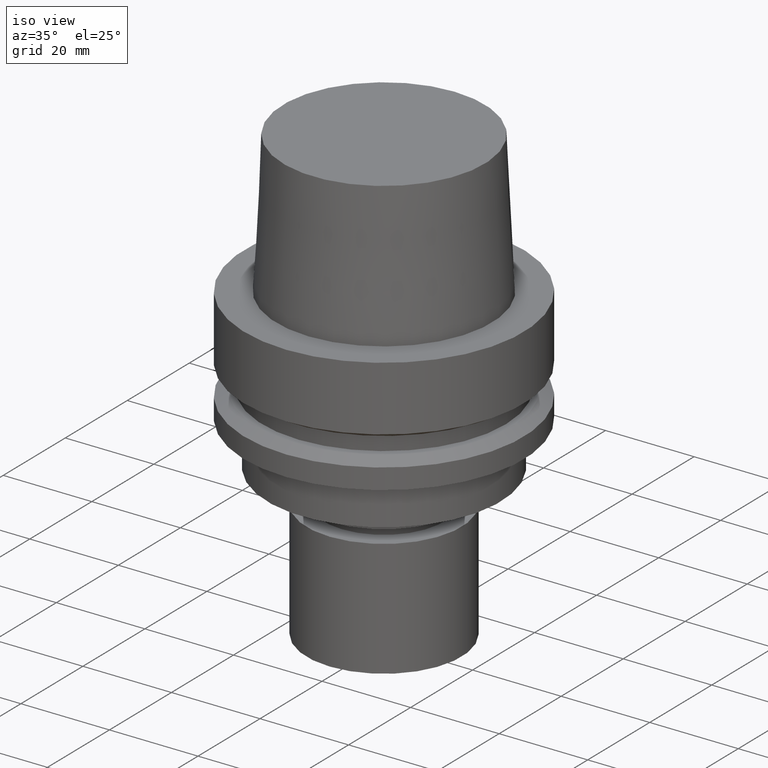
[diagram: clean part render]
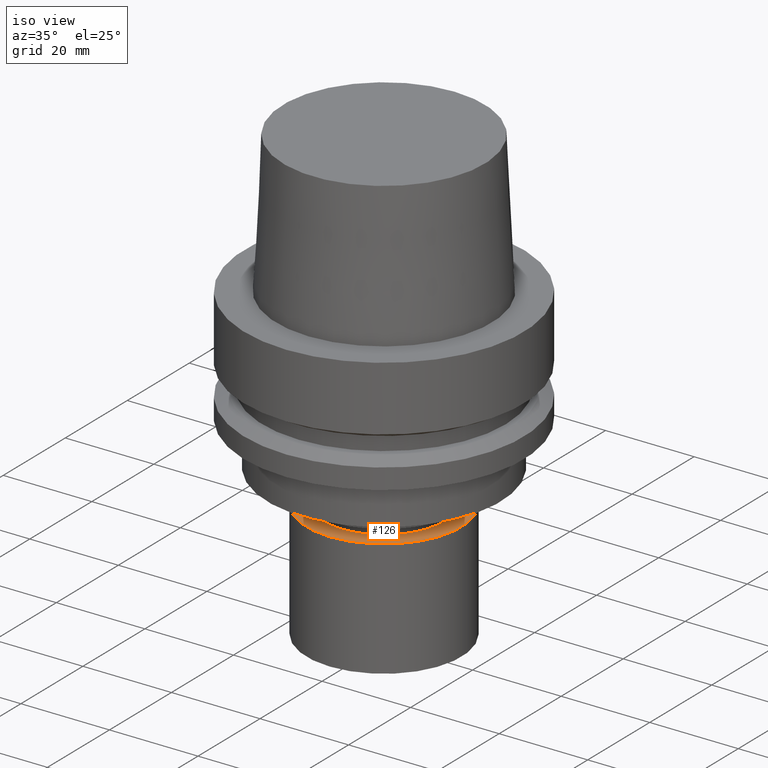
[diagram: same view with one face highlighted and labeled with its STEP entity id]
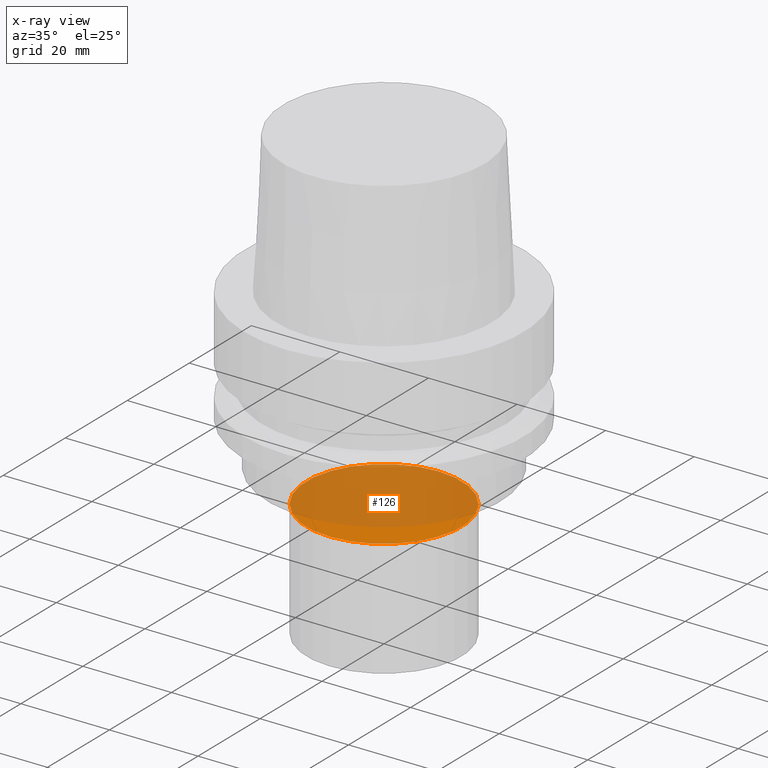
[diagram: x-ray of the same camera — body ghosted, the highlighted face saturated]
A machine part, iso view. The second image highlights one B-rep face of the part: STEP entity #126.
The next image is the same camera in x-ray: the body ghosted, the highlighted face saturated — about 79% of this face is hidden behind the body in this view.
In plain terms, the highlighted planar face has unit normal (-0, -0, 1).
Its self-contained STEP definition (entity closure, byte-faithful):
#84=EDGE_CURVE('Unnamed[1]',#225,#225,#226,.T.);
#126=ADVANCED_FACE('Unnamed[1]',(#289),#290,.T.);
#225=VERTEX_POINT('',#425);
#226=CIRCLE('',#426,17.5);
#289=FACE_OUTER_BOUND('',#506,.T.);
#290=PLANE('',#507);
#425=CARTESIAN_POINT('',(2.66360772247685E-015,17.5,-43.5000152587891));
#426=AXIS2_PLACEMENT_3D('',#656,#657,#658);
#506=EDGE_LOOP('',(#727));
#507=AXIS2_PLACEMENT_3D('',#728,#729,#730);
#656=CARTESIAN_POINT('',(2.66360772247685E-015,5.32721544495371E-015,-43.5000152587891));
#657=DIRECTION('',(6.12323399573677E-017,1.22464679914735E-016,-1.0));
#658=DIRECTION('',(-1.23259516440783E-032,1.0,1.22464679914735E-016));
#727=ORIENTED_EDGE('',*,*,#84,.F.);
#728=CARTESIAN_POINT('',(2.66360772247685E-015,8.75000000000001,-43.5000152587891));
#729=DIRECTION('',(-6.12323399573677E-017,-1.22464679914735E-016,1.0));
#730=DIRECTION('',(1.23259516440783E-032,-1.0,-1.22464679914735E-016));